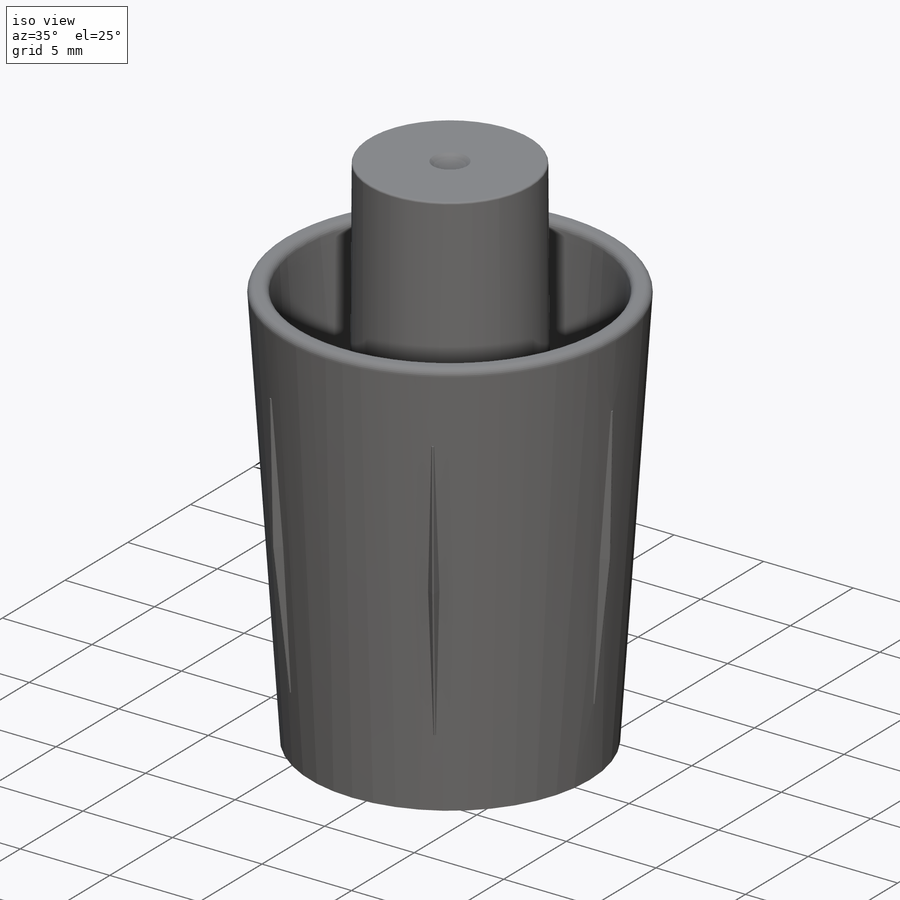
[diagram: iso view]
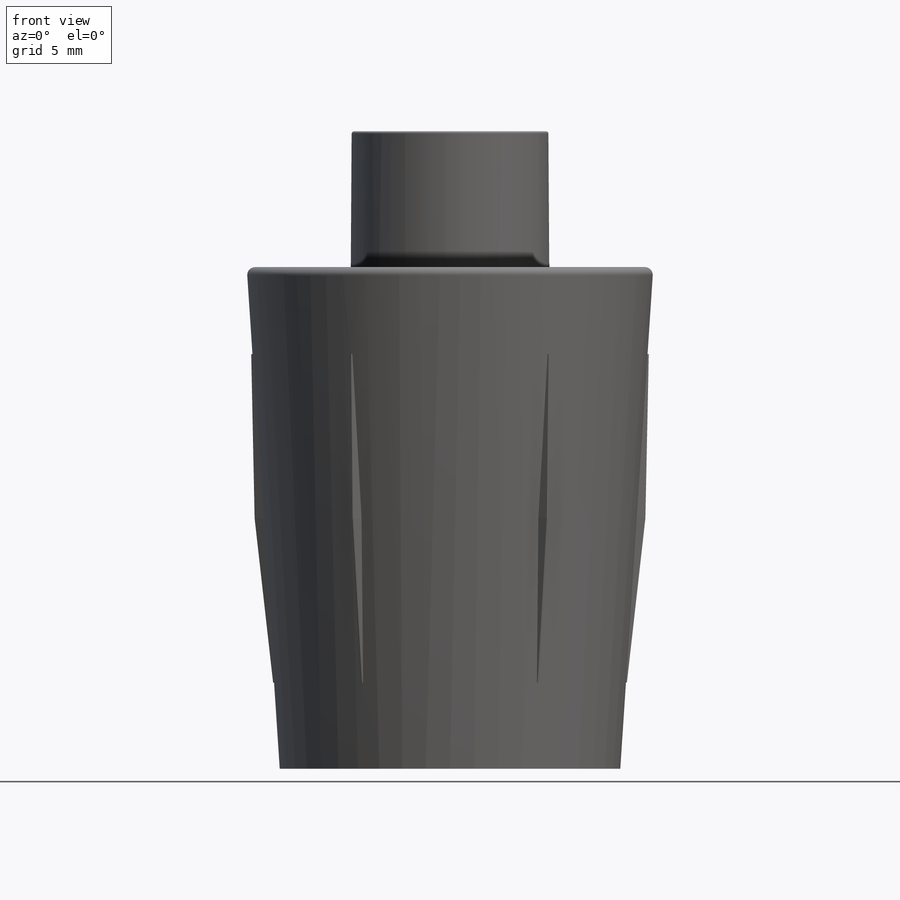
[diagram: front view]
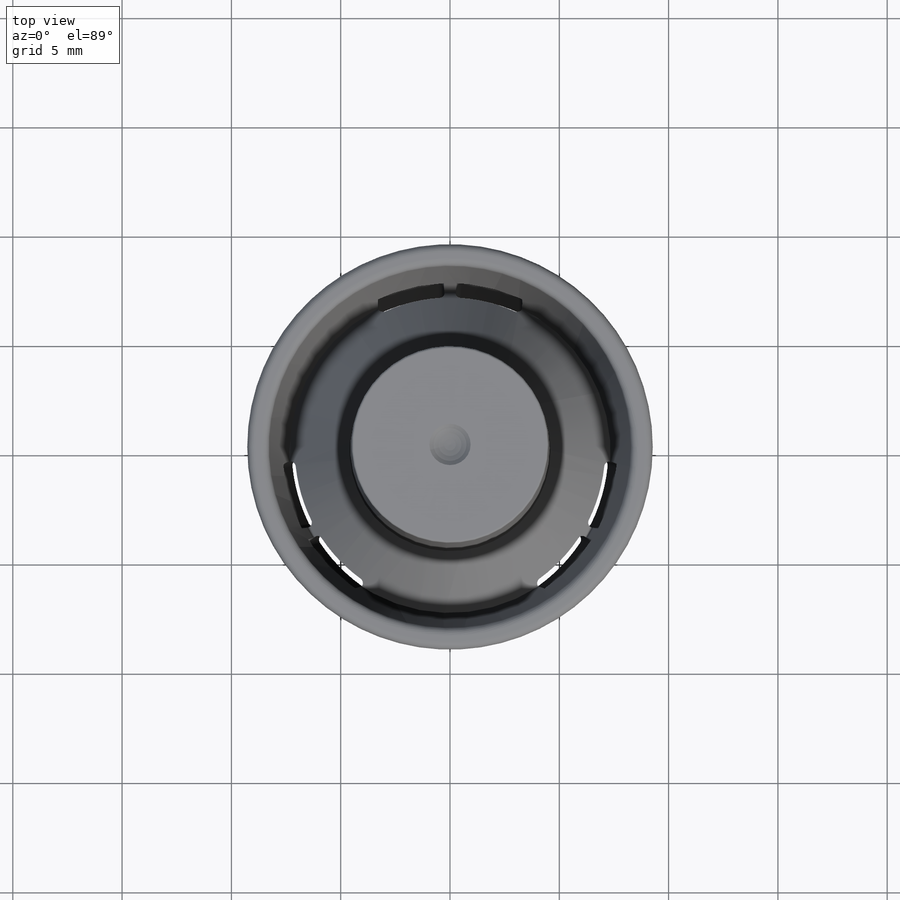
[diagram: top view]
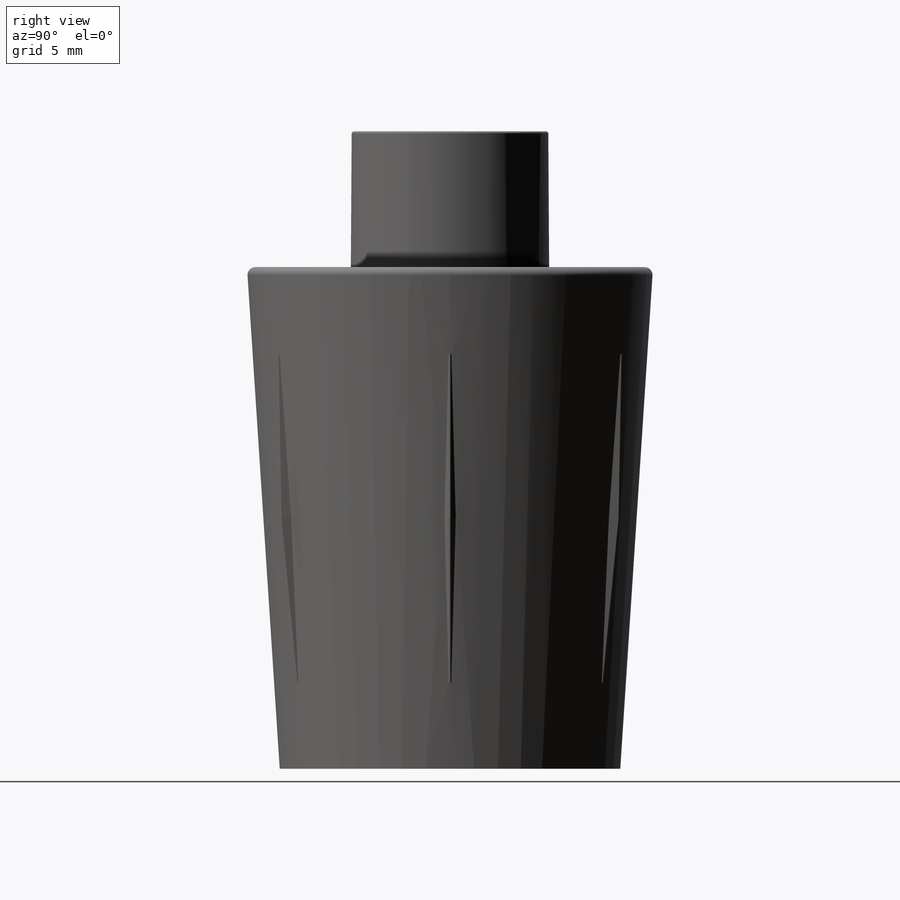
[diagram: right view]
SOLIDWORKS PART (.sldprt)
format: sldprt  version: not decoded by parser v0  size: 556,544 bytes
history: native  units: mm
features: sketch x9, plane x2, sweep x2, pattern_circular x2, cut_revolve x2, fillet x2, material x1, revolve x1, cut_extrude x1 (+13 scaffold rows collapsed)
feature tree (35):
  scaffold x13  (default folders/planes/origin — collapsed)
  material  "Material <not specified>"
  sketch  "Sketch1"  dims[c1.D1=29.16mm c1.D2=1.0mm c1.D3=4.5mm c1.D4=3.5mm c1.D5=1.0mm c1.D6=22.95mm c1.D7=1.0mm c1.D8=1.0mm c1.D9=15.0mm c1.D10=16.0mm c1.D11=6.79mm c1.D12=7.79mm c1.D13=4.5mm c2.D1=30.16mm c2.D2=4.5mm c2.D3=3.5mm c2.D4=22.95mm c2.D5=1.0mm c2.D6=4.6mm c2.D7=1.0mm c2.D8=7.79mm c2.D9=6.79mm c2.D10=1.0mm c2.D11=7.0mm c2.D12=17.0mm c2.D13=16.0mm c2.D14=9.3mm]
  revolve  "Revolve1"  Angle=360deg
  sketch  "Sketch3"  dims[c1.D1=20.0mm c1.D2=15.0mm c1.D3=3.98mm c2.D1=15.0mm c2.D2=7.5mm]
  plane  "Plane1"
  sketch  "Sketch4"
  sweep  "Sweep1"
  pattern_circular  "CirPattern1"  Count=6 Angle=360deg
  sketch  "Sketch6"  dims[D1=13.58mm]
  cut_extrude  "Cut-Extrude3"  Depth=5mm
  plane  "Plane2"
  sketch  "Sketch7"  dims[D1=1.89mm]
  sketch  "Sketch8"  dims[D1=0.45mm]
  cut_revolve  "Cut-Revolve1"  Angle=360deg
  sketch  "Sketch9"  dims[D1=15.58mm D2=14.58mm D3=7.79mm D4=2.56mm D5=0.5mm]
  sketch  "Sketch10"
  sweep  "Cut-Sweep1"
  pattern_circular  "CirPattern2"  Count=3 Angle=360deg
  fillet  "Fillet1"  Radius=0.1mm
  fillet  "Fillet2"  Radius=0.36mm
  sketch  "Sketch11"
  cut_revolve  "Cut-Revolve2"  Angle=360deg
decode coverage: 14 of 19 modeling features carry decoded parameters
note: suppression state not decoded; provenance and decode notes live in map.json
